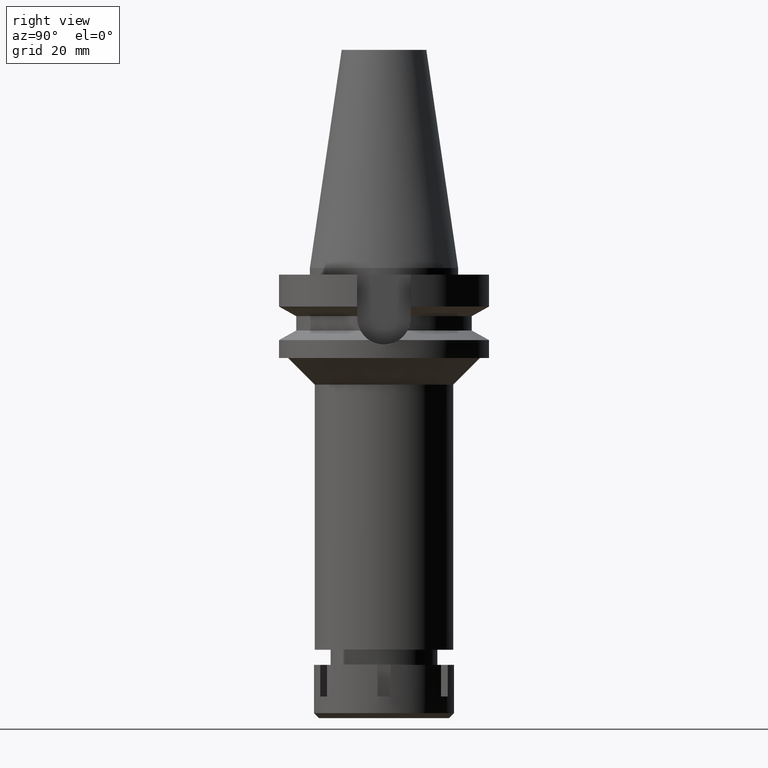
[diagram: clean part render]
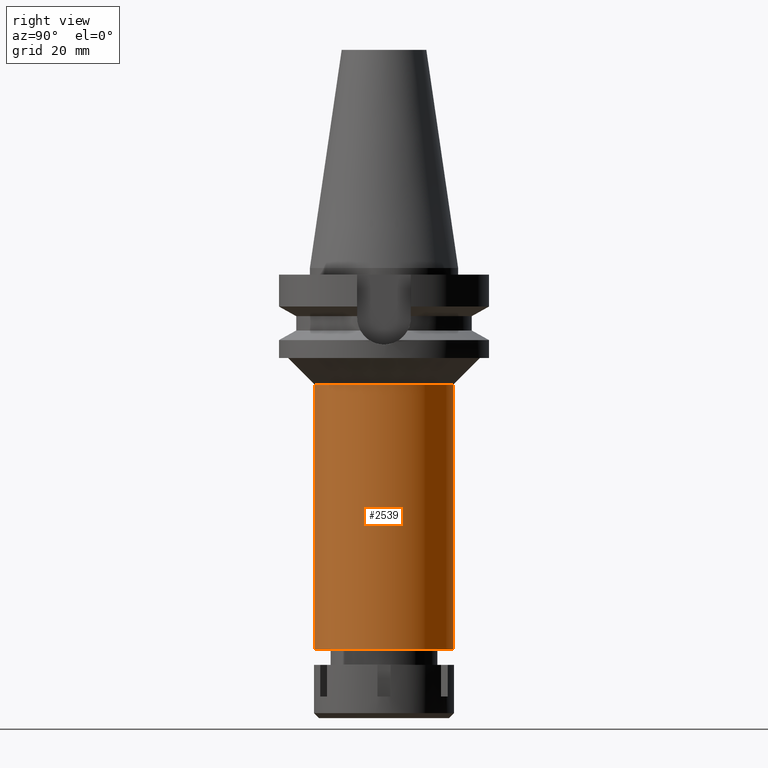
[diagram: same view with one face highlighted and labeled with its STEP entity id]
A machine part, right view. The second image highlights one B-rep face of the part: STEP entity #2539.
In plain terms, the highlighted cylindrical surface (partial cylindrical patch) has radius 20.75 mm, axis along (0, 0, -1).
Its self-contained STEP definition (entity closure, byte-faithful):
#51 = CIRCLE ( 'NONE', #887, 20.75000000000000000 ) ;
#78 = CARTESIAN_POINT ( 'NONE',  ( 0.0000000000000000000, 0.0000000000000000000, -35.00000000000000000 ) ) ;
#83 = CARTESIAN_POINT ( 'NONE',  ( 0.0000000000000000000, -20.75000000000000000, -35.00000000000000000 ) ) ;
#113 = EDGE_CURVE ( 'NONE', #495, #1736, #3317, .T. ) ;
#189 = CARTESIAN_POINT ( 'NONE',  ( 0.0000000000000000000, 20.75000000000000000, -114.5000000000000000 ) ) ;
#495 = VERTEX_POINT ( 'NONE', #1478 ) ;
#621 = CYLINDRICAL_SURFACE ( 'NONE', #2458, 20.75000000000000000 ) ;
#668 = VECTOR ( 'NONE', #3297, 1000.000000000000000 ) ;
#678 = DIRECTION ( 'NONE',  ( 0.0000000000000000000, 0.0000000000000000000, -1.000000000000000000 ) ) ;
#732 = DIRECTION ( 'NONE',  ( 0.0000000000000000000, 0.0000000000000000000, 1.000000000000000000 ) ) ;
#832 = VECTOR ( 'NONE', #2453, 1000.000000000000000 ) ;
#887 = AXIS2_PLACEMENT_3D ( 'NONE', #1865, #732, #2654 ) ;
#1072 = VERTEX_POINT ( 'NONE', #83 ) ;
#1185 = EDGE_CURVE ( 'NONE', #1072, #2250, #3548, .T. ) ;
#1274 = EDGE_LOOP ( 'NONE', ( #3639, #2976, #1315, #2290 ) ) ;
#1315 = ORIENTED_EDGE ( 'NONE', *, *, #2138, .T. ) ;
#1442 = DIRECTION ( 'NONE',  ( 0.0000000000000000000, -1.000000000000000000, 0.0000000000000000000 ) ) ;
#1478 = CARTESIAN_POINT ( 'NONE',  ( 0.0000000000000000000, 20.75000000000000000, -35.00000000000000000 ) ) ;
#1505 = EDGE_CURVE ( 'NONE', #495, #1072, #2349, .T. ) ;
#1582 = AXIS2_PLACEMENT_3D ( 'NONE', #78, #678, #1754 ) ;
#1736 = VERTEX_POINT ( 'NONE', #189 ) ;
#1754 = DIRECTION ( 'NONE',  ( 0.0000000000000000000, 1.000000000000000000, 0.0000000000000000000 ) ) ;
#1765 = DIRECTION ( 'NONE',  ( 0.0000000000000000000, 0.0000000000000000000, -1.000000000000000000 ) ) ;
#1865 = CARTESIAN_POINT ( 'NONE',  ( 0.0000000000000000000, 2.143376827867999896E-14, -114.5000000000000000 ) ) ;
#2034 = CARTESIAN_POINT ( 'NONE',  ( 0.0000000000000000000, 2.143376827867999896E-14, 75.02000000000001023 ) ) ;
#2138 = EDGE_CURVE ( 'NONE', #2250, #1736, #51, .T. ) ;
#2250 = VERTEX_POINT ( 'NONE', #3269 ) ;
#2290 = ORIENTED_EDGE ( 'NONE', *, *, #113, .F. ) ;
#2349 = CIRCLE ( 'NONE', #1582, 20.75000000000000000 ) ;
#2432 = CARTESIAN_POINT ( 'NONE',  ( 0.0000000000000000000, -20.75000000000000000, -35.00000000000000000 ) ) ;
#2453 = DIRECTION ( 'NONE',  ( 0.0000000000000000000, 0.0000000000000000000, -1.000000000000000000 ) ) ;
#2458 = AXIS2_PLACEMENT_3D ( 'NONE', #2034, #1765, #1442 ) ;
#2539 = ADVANCED_FACE ( 'NONE', ( #3122 ), #621, .T. ) ;
#2654 = DIRECTION ( 'NONE',  ( 0.0000000000000000000, -1.000000000000000000, 0.0000000000000000000 ) ) ;
#2976 = ORIENTED_EDGE ( 'NONE', *, *, #1185, .T. ) ;
#3122 = FACE_OUTER_BOUND ( 'NONE', #1274, .T. ) ;
#3269 = CARTESIAN_POINT ( 'NONE',  ( 0.0000000000000000000, -20.75000000000000000, -114.5000000000000000 ) ) ;
#3297 = DIRECTION ( 'NONE',  ( 0.0000000000000000000, 0.0000000000000000000, -1.000000000000000000 ) ) ;
#3317 = LINE ( 'NONE', #3518, #832 ) ;
#3518 = CARTESIAN_POINT ( 'NONE',  ( 0.0000000000000000000, 20.75000000000000000, -35.00000000000000000 ) ) ;
#3548 = LINE ( 'NONE', #2432, #668 ) ;
#3639 = ORIENTED_EDGE ( 'NONE', *, *, #1505, .T. ) ;